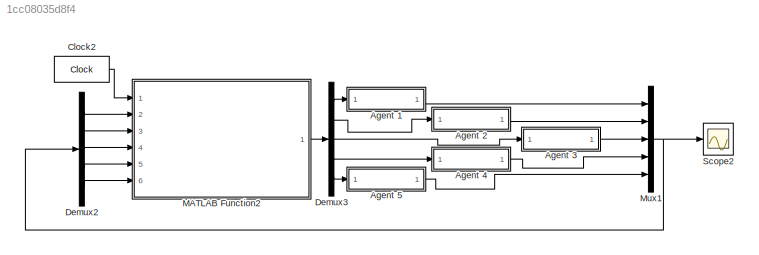
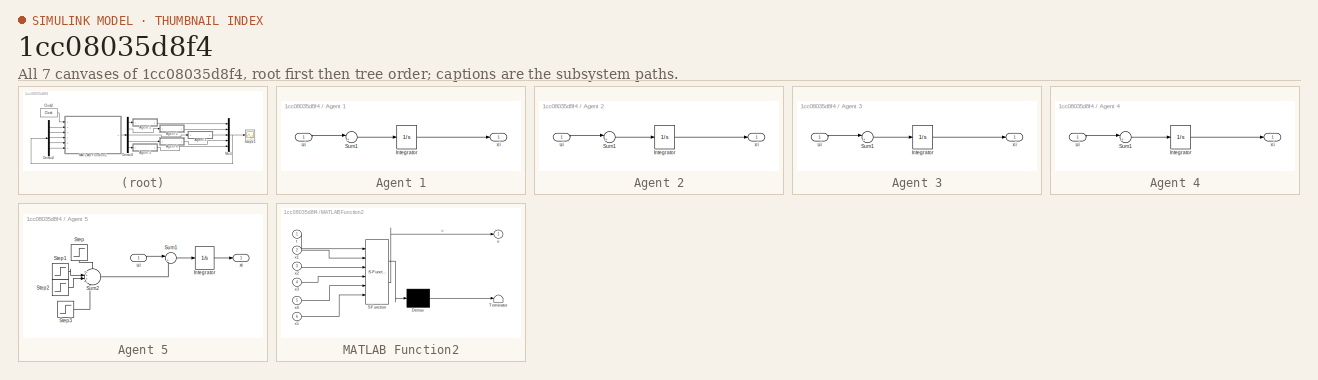
[diagram: thumbnail index - all 7 canvases of the model, root first then tree order]
MODEL slx_1cc08035d8f4
KIND model
CONFIG AbsTol = auto
CONFIG EnableMultiTasking = off
CONFIG FixedStep = auto
CONFIG MaxStep = auto
CONFIG MinStep = auto
CONFIG RelTol = 1e-3
CONFIG SampleTimeConstraint = Unconstrained
CONFIG SolverName = VariableStepAuto
CONFIG StartTime = 0.0
CONFIG StopTime = 50
BLOCK [SubSystem] Agent 1
  Ports = [1, 1]
  RequestExecContextInheritance = off
BLOCK [Integrator] Agent 1/Integrator
  InitialCondition = 4
  Ports = [1, 1]
BLOCK [Sum] Agent 1/Sum1
  Inputs = |+-
  Ports = [2, 1]
BLOCK [Inport] Agent 1/ui
BLOCK [Outport] Agent 1/xi
BLOCK [SubSystem] Agent 2
  Ports = [1, 1]
  RequestExecContextInheritance = off
BLOCK [Integrator] Agent 2/Integrator
  InitialCondition = 1
  Ports = [1, 1]
BLOCK [Sum] Agent 2/Sum1
  Inputs = |+-
  Ports = [2, 1]
BLOCK [Inport] Agent 2/ui
BLOCK [Outport] Agent 2/xi
BLOCK [SubSystem] Agent 3
  Ports = [1, 1]
  RequestExecContextInheritance = off
BLOCK [Integrator] Agent 3/Integrator
  InitialCondition = 2
  Ports = [1, 1]
BLOCK [Sum] Agent 3/Sum1
  Inputs = |+-
  Ports = [2, 1]
BLOCK [Inport] Agent 3/ui
BLOCK [Outport] Agent 3/xi
BLOCK [SubSystem] Agent 4
  Ports = [1, 1]
  RequestExecContextInheritance = off
BLOCK [Integrator] Agent 4/Integrator
  InitialCondition = 3
  Ports = [1, 1]
BLOCK [Sum] Agent 4/Sum1
  Inputs = |+-
  Ports = [2, 1]
BLOCK [Inport] Agent 4/ui
BLOCK [Outport] Agent 4/xi
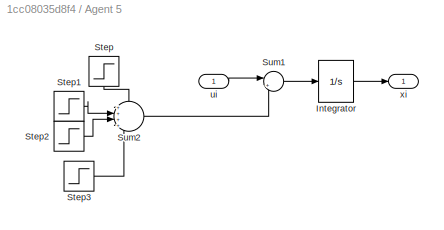
BLOCK [SubSystem] Agent 5
  Ports = [1, 1]
  RequestExecContextInheritance = off
BLOCK [Integrator] Agent 5/Integrator
  InitialCondition = 10
  Ports = [1, 1]
BLOCK [Step] Agent 5/Step
  NameLocation = left
  SampleTime = 0
  Time = 20
BLOCK [Step] Agent 5/Step1
  After = -0.5
  SampleTime = 0
  Time = 25
BLOCK [Step] Agent 5/Step2
  After = -1
  SampleTime = 0
  Time = 30
BLOCK [Step] Agent 5/Step3
  After = 0.5
  SampleTime = 0
  Time = 35
BLOCK [Sum] Agent 5/Sum1
  Inputs = |++
  Ports = [2, 1]
BLOCK [Sum] Agent 5/Sum2
  Inputs = ++++
  Ports = [4, 1]
BLOCK [Inport] Agent 5/ui
BLOCK [Outport] Agent 5/xi
BLOCK [Clock] Clock2
  DisplayTime = on
BLOCK [Demux] Demux2
  Outputs = 5
  Ports = [1, 5]
BLOCK [Demux] Demux3
  Outputs = 5
  Ports = [1, 5]
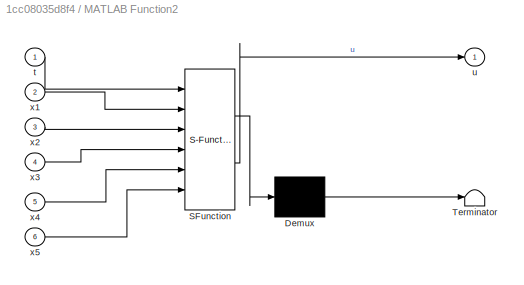
BLOCK [SubSystem] MATLAB Function2
  ErrorFcn = Stateflow.Translate.translate
  PermitHierarchicalResolution = ExplicitOnly
  Ports = [6, 1]
  RequestExecContextInheritance = off
  SFBlockType = MATLAB Function
  TreatAsAtomicUnit = on
BLOCK [Demux] MATLAB Function2/ Demux 
  Outputs = 1
  Ports = [1, 1]
BLOCK [S-Function] MATLAB Function2/ SFunction 
  EnableBusSupport = on
  FunctionName = sf_sfun
  PortCounts = [6 2]
  Ports = [6, 2]
  SFcnIsStateOwnerBlock = off
  SFunctionDeploymentMode = off
  Tag = Stateflow S-Function 2
BLOCK [Terminator] MATLAB Function2/ Terminator 
BLOCK [Inport] MATLAB Function2/t
BLOCK [Outport] MATLAB Function2/u
BLOCK [Inport] MATLAB Function2/x1
  Port = 2
BLOCK [Inport] MATLAB Function2/x2
  Port = 3
BLOCK [Inport] MATLAB Function2/x3
  Port = 4
BLOCK [Inport] MATLAB Function2/x4
  Port = 5
BLOCK [Inport] MATLAB Function2/x5
  Port = 6
BLOCK [Mux] Mux1
  DisplayOption = bar
  Inputs = 5
  Ports = [5, 1]
BLOCK [Scope] Scope2
  Floating = off
  NumInputPorts = 1
  Ports = [1]
  ScopeSpecificationString = Simulink.scopes.TimeScopeBlockCfg('CurrentConfiguration', extmgr.ConfigurationSet(extmgr.Configuration('Core','General UI',true),extmgr.Configuration('Core','Source UI',true),extmgr.Configuration('Sources','WiredSimulink',true),extmgr.Configuration('Visuals','Time Domain',true,'SerializedDisplays',{struct('MinYLimReal','-1.0625','MaxYLimReal','19.5625','YLabelReal','','MinYLimMag','0.00000','MaxYL...<+1390ch>
LINE Agent 1/Integrator:1 -> Agent 1/xi:1
LINE Agent 1/Sum1:1 -> Agent 1/Integrator:1
LINE Agent 1/ui:1 -> Agent 1/Sum1:1
LINE Agent 1:1 -> Mux1:1
LINE Agent 2/Integrator:1 -> Agent 2/xi:1
LINE Agent 2/Sum1:1 -> Agent 2/Integrator:1
LINE Agent 2/ui:1 -> Agent 2/Sum1:1
LINE Agent 2:1 -> Mux1:2
LINE Agent 3/Integrator:1 -> Agent 3/xi:1
LINE Agent 3/Sum1:1 -> Agent 3/Integrator:1
LINE Agent 3/ui:1 -> Agent 3/Sum1:1
LINE Agent 3:1 -> Mux1:3
LINE Agent 4/Integrator:1 -> Agent 4/xi:1
LINE Agent 4/Sum1:1 -> Agent 4/Integrator:1
LINE Agent 4/ui:1 -> Agent 4/Sum1:1
LINE Agent 4:1 -> Mux1:4
LINE Agent 5/Integrator:1 -> Agent 5/xi:1
LINE Agent 5/Step1:1 -> Agent 5/Sum2:2
LINE Agent 5/Step2:1 -> Agent 5/Sum2:3
LINE Agent 5/Step3:1 -> Agent 5/Sum2:4
LINE Agent 5/Step:1 -> Agent 5/Sum2:1
LINE Agent 5/Sum1:1 -> Agent 5/Integrator:1
LINE Agent 5/Sum2:1 -> Agent 5/Sum1:2
LINE Agent 5/ui:1 -> Agent 5/Sum1:1
LINE Agent 5:1 -> Mux1:5
LINE Clock2:1 -> MATLAB Function2:1
LINE Demux2:1 -> MATLAB Function2:2
LINE Demux2:2 -> MATLAB Function2:3
LINE Demux2:3 -> MATLAB Function2:4
LINE Demux2:4 -> MATLAB Function2:5
LINE Demux2:5 -> MATLAB Function2:6
LINE Demux3:1 -> Agent 1:1
LINE Demux3:2 -> Agent 2:1
LINE Demux3:3 -> Agent 3:1
LINE Demux3:4 -> Agent 4:1
LINE Demux3:5 -> Agent 5:1
LINE MATLAB Function2:1 -> Demux3:1
NET Mux1:1 -> Demux2:1, Scope2:1
note: NET lines group one-source signal fan-out (src -> all destinations, sorted); 1:1 wires keep LINE
CHART MATLAB Function2 states=1 transitions=1
  STATE_LABEL 'eML_blk_kernel()'
  STATE_LABEL "SCRIPT:\nfunction u = sys_switch_topo_02(t, x1, x2, x3, x4, x5)\n\nif rem(floor(t/2),2) == 0\n    L = [2  0 -1  0 -1;\n         0  0  0  0  0;\n         0  0  0  0  0;\n         0  0 -1 +1  0;\n         0  0  0  0  0;\n        ];\n\nelse\n    L = [2 -1  0  0 -1;\n         0  0  0  0  0;\n         0  0  0  0  0;\n         0 -1  0 +1  0;\n         0  0  0  0  0;\n        ];\nend\n    \nstates = [x1, x2, x3, x4 x5]';\n\nu...<+18ch>"
CHART  states=0 transitions=0
